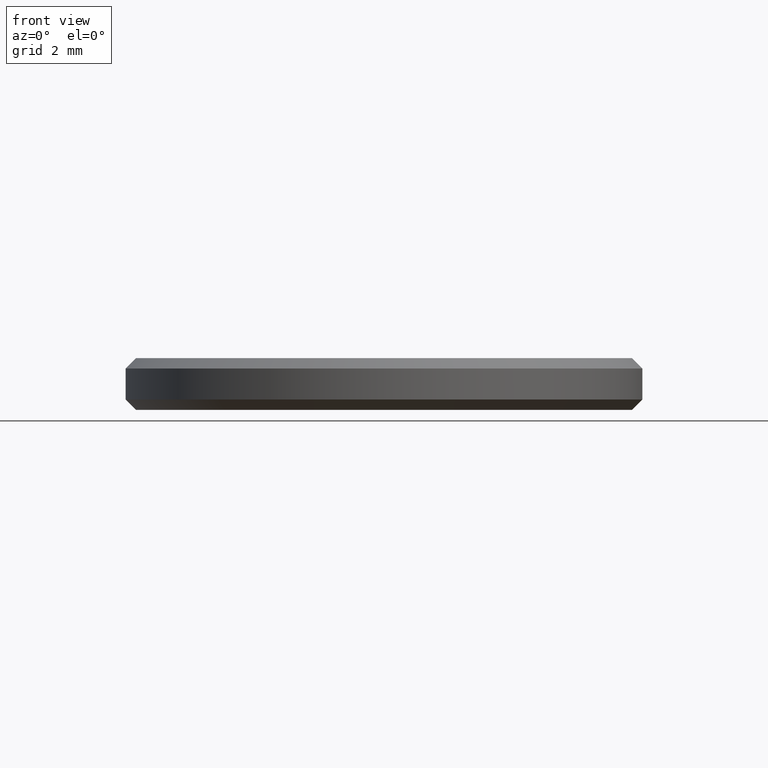
[diagram: clean part render]
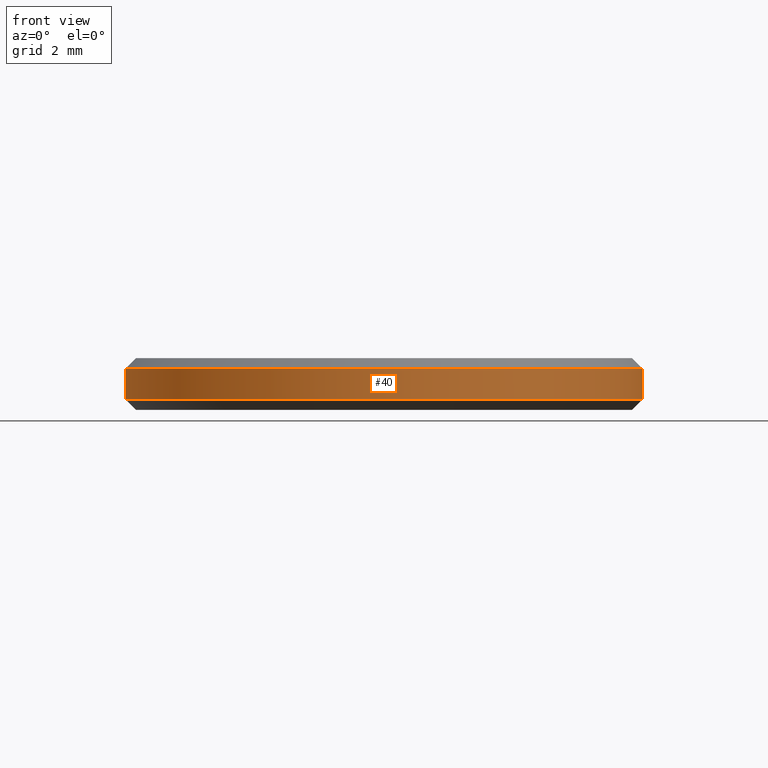
[diagram: same view with one face highlighted and labeled with its STEP entity id]
A machine part, front view. The second image highlights one B-rep face of the part: STEP entity #40.
In plain terms, the highlighted cylindrical surface (partial cylindrical patch) has radius 5 mm, axis along (-0, -0, -1).
Its self-contained STEP definition (entity closure, byte-faithful):
#2 = DIRECTION ( 'NONE',  ( -0.000000000000000000, -0.000000000000000000, 1.000000000000000000 ) ) ;
#3 = CARTESIAN_POINT ( 'NONE',  ( 5.000000000000000000, 6.123233995736766282E-16, 1.000000000000000000 ) ) ;
#8 = CARTESIAN_POINT ( 'NONE',  ( 0.000000000000000000, 0.000000000000000000, 0.8000000000000012657 ) ) ;
#16 = FACE_OUTER_BOUND ( 'NONE', #133, .T. ) ;
#19 = DIRECTION ( 'NONE',  ( -0.000000000000000000, -0.000000000000000000, -1.000000000000000000 ) ) ;
#39 = VERTEX_POINT ( 'NONE', #150 ) ;
#40 = ADVANCED_FACE ( 'NONE', ( #16 ), #75, .T. ) ;
#48 = DIRECTION ( 'NONE',  ( 1.000000000000000000, 0.000000000000000000, 0.000000000000000000 ) ) ;
#49 = DIRECTION ( 'NONE',  ( -1.000000000000000000, 0.000000000000000000, 0.000000000000000000 ) ) ;
#56 = AXIS2_PLACEMENT_3D ( 'NONE', #218, #151, #49 ) ;
#75 = CYLINDRICAL_SURFACE ( 'NONE', #56, 5.000000000000000000 ) ;
#83 = DIRECTION ( 'NONE',  ( 1.000000000000000000, 0.000000000000000000, 0.000000000000000000 ) ) ;
#86 = EDGE_CURVE ( 'NONE', #173, #111, #107, .T. ) ;
#88 = EDGE_CURVE ( 'NONE', #135, #39, #199, .T. ) ;
#89 = VECTOR ( 'NONE', #19, 1000.000000000000000 ) ;
#92 = EDGE_CURVE ( 'NONE', #135, #173, #119, .T. ) ;
#93 = DIRECTION ( 'NONE',  ( -0.000000000000000000, -0.000000000000000000, -1.000000000000000000 ) ) ;
#99 = ORIENTED_EDGE ( 'NONE', *, *, #121, .T. ) ;
#102 = AXIS2_PLACEMENT_3D ( 'NONE', #8, #192, #48 ) ;
#107 = LINE ( 'NONE', #185, #144 ) ;
#109 = CIRCLE ( 'NONE', #125, 5.000000000000000000 ) ;
#111 = VERTEX_POINT ( 'NONE', #196 ) ;
#119 = CIRCLE ( 'NONE', #102, 5.000000000000000000 ) ;
#121 = EDGE_CURVE ( 'NONE', #111, #39, #109, .T. ) ;
#124 = CARTESIAN_POINT ( 'NONE',  ( -5.000000000000000000, 0.000000000000000000, 0.8000000000000012657 ) ) ;
#125 = AXIS2_PLACEMENT_3D ( 'NONE', #175, #2, #83 ) ;
#133 = EDGE_LOOP ( 'NONE', ( #159, #143, #157, #99 ) ) ;
#135 = VERTEX_POINT ( 'NONE', #160 ) ;
#143 = ORIENTED_EDGE ( 'NONE', *, *, #92, .T. ) ;
#144 = VECTOR ( 'NONE', #93, 1000.000000000000000 ) ;
#150 = CARTESIAN_POINT ( 'NONE',  ( 5.000000000000000000, 6.123233995736766282E-16, 0.1999999999999996503 ) ) ;
#151 = DIRECTION ( 'NONE',  ( -0.000000000000000000, -0.000000000000000000, -1.000000000000000000 ) ) ;
#157 = ORIENTED_EDGE ( 'NONE', *, *, #86, .T. ) ;
#159 = ORIENTED_EDGE ( 'NONE', *, *, #88, .F. ) ;
#160 = CARTESIAN_POINT ( 'NONE',  ( 5.000000000000000000, 6.123233995736766282E-16, 0.8000000000000012657 ) ) ;
#173 = VERTEX_POINT ( 'NONE', #124 ) ;
#175 = CARTESIAN_POINT ( 'NONE',  ( 0.000000000000000000, 0.000000000000000000, 0.1999999999999996503 ) ) ;
#185 = CARTESIAN_POINT ( 'NONE',  ( -5.000000000000000000, 0.000000000000000000, 1.000000000000000000 ) ) ;
#192 = DIRECTION ( 'NONE',  ( 0.000000000000000000, 0.000000000000000000, -1.000000000000000000 ) ) ;
#196 = CARTESIAN_POINT ( 'NONE',  ( -5.000000000000000000, 0.000000000000000000, 0.1999999999999996503 ) ) ;
#199 = LINE ( 'NONE', #3, #89 ) ;
#218 = CARTESIAN_POINT ( 'NONE',  ( 0.000000000000000000, 0.000000000000000000, 1.000000000000000000 ) ) ;